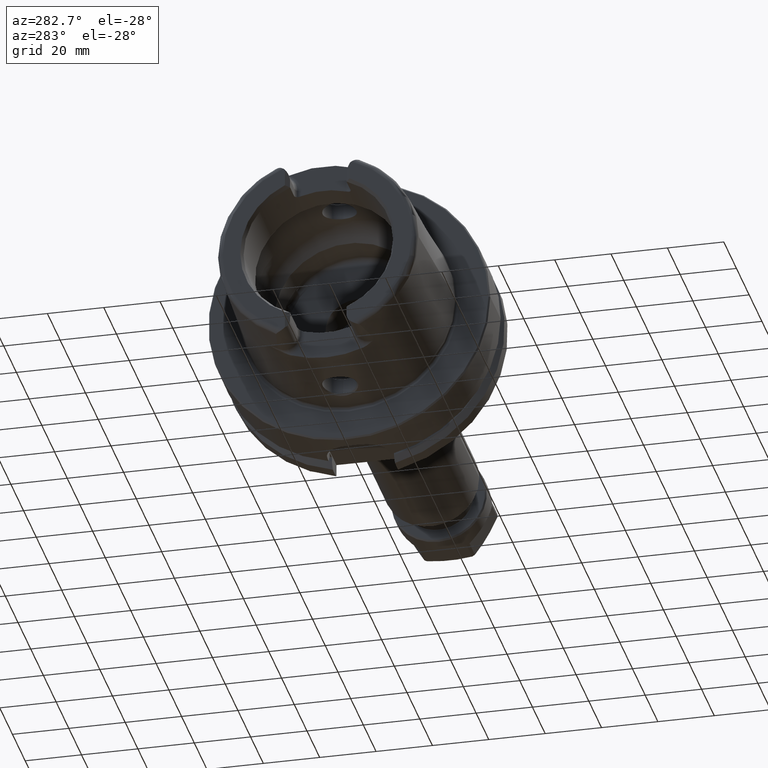
[diagram: clean part render]
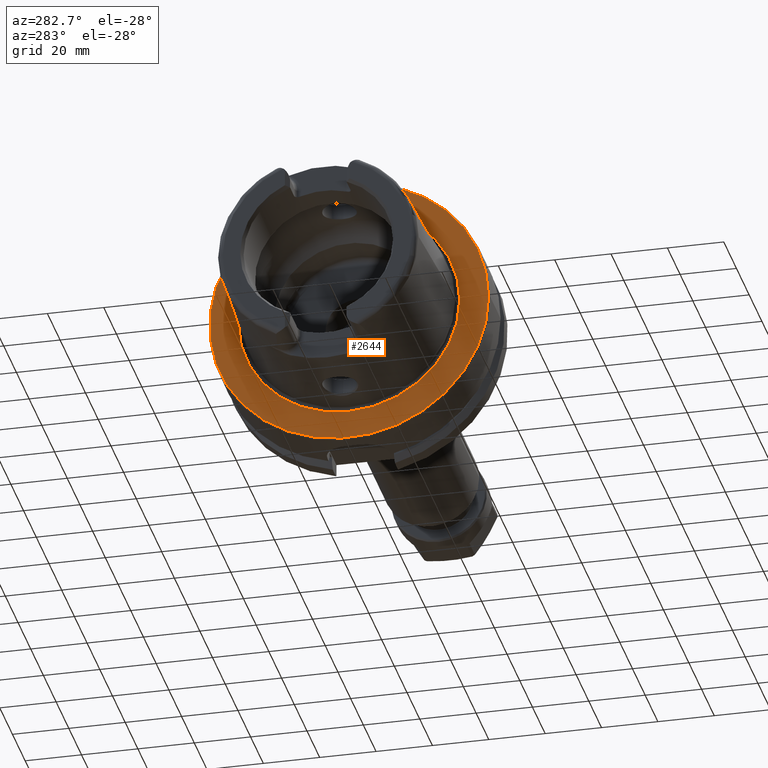
[diagram: same view with one face highlighted and labeled with its STEP entity id]
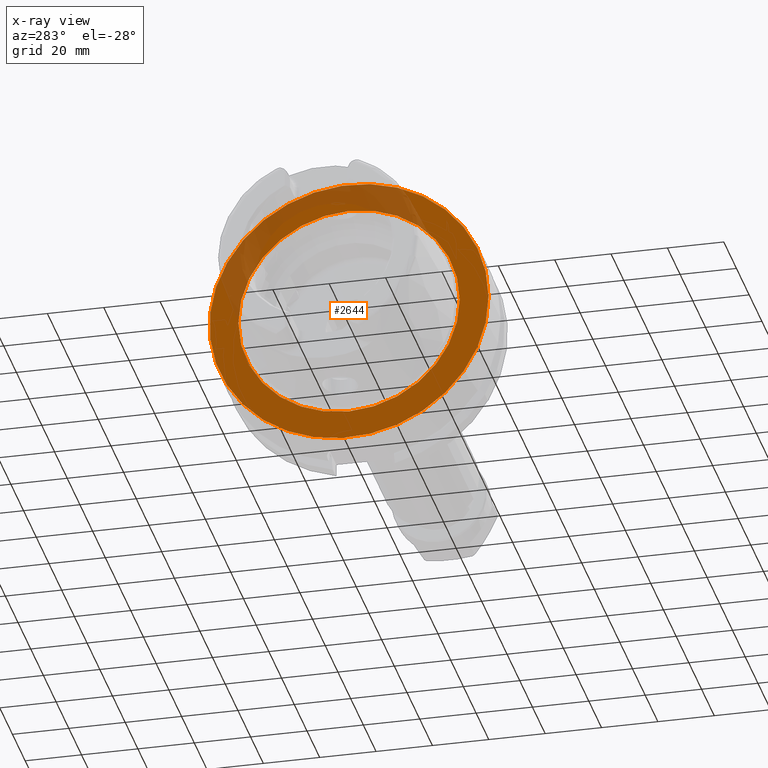
[diagram: x-ray of the same camera — body ghosted, the highlighted face saturated]
A machine part, auxiliary view. The second image highlights one B-rep face of the part: STEP entity #2644.
The next image is the same camera in x-ray: the body ghosted, the highlighted face saturated — about 24% of this face is hidden behind the body in this view.
In plain terms, the highlighted planar face has unit normal (-1, 0, 0).
Its self-contained STEP definition (entity closure, byte-faithful):
#164=FACE_BOUND('',#557,.T.);
#208=PLANE('',#3015);
#392=FACE_OUTER_BOUND('',#556,.T.);
#556=EDGE_LOOP('',(#2309));
#557=EDGE_LOOP('',(#2310));
#1009=CIRCLE('',#3014,39.2747800249997);
#1010=CIRCLE('',#3016,49.5);
#1254=VERTEX_POINT('',#5436);
#1255=VERTEX_POINT('',#5440);
#1618=EDGE_CURVE('',#1254,#1254,#1009,.T.);
#1619=EDGE_CURVE('',#1255,#1255,#1010,.T.);
#2309=ORIENTED_EDGE('',*,*,#1619,.F.);
#2310=ORIENTED_EDGE('',*,*,#1618,.T.);
#2644=ADVANCED_FACE('',(#392,#164),#208,.T.);
#3014=AXIS2_PLACEMENT_3D('',#5438,#3716,#3717);
#3015=AXIS2_PLACEMENT_3D('',#5439,#3718,#3719);
#3016=AXIS2_PLACEMENT_3D('',#5441,#3720,#3721);
#3716=DIRECTION('center_axis',(1.,0.,0.));
#3717=DIRECTION('ref_axis',(0.,0.,-1.));
#3718=DIRECTION('center_axis',(-1.,0.,0.));
#3719=DIRECTION('ref_axis',(0.,0.,1.));
#3720=DIRECTION('center_axis',(1.,0.,0.));
#3721=DIRECTION('ref_axis',(0.,0.,-1.));
#5436=CARTESIAN_POINT('',(-1.11889664200504E-15,-39.2747800249997,-4.80977336448322E-15));
#5438=CARTESIAN_POINT('Origin',(0.,0.,0.));
#5439=CARTESIAN_POINT('Origin',(0.,49.5,0.));
#5440=CARTESIAN_POINT('',(1.2490009027033E-15,-49.5,-6.0620016557794E-15));
#5441=CARTESIAN_POINT('Origin',(0.,0.,0.));